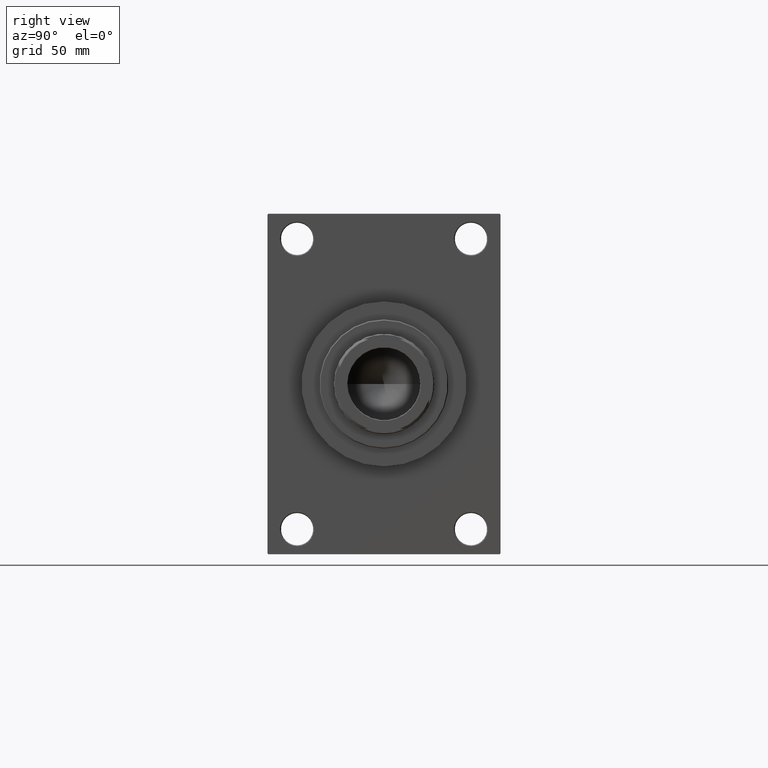
[diagram: clean part render]
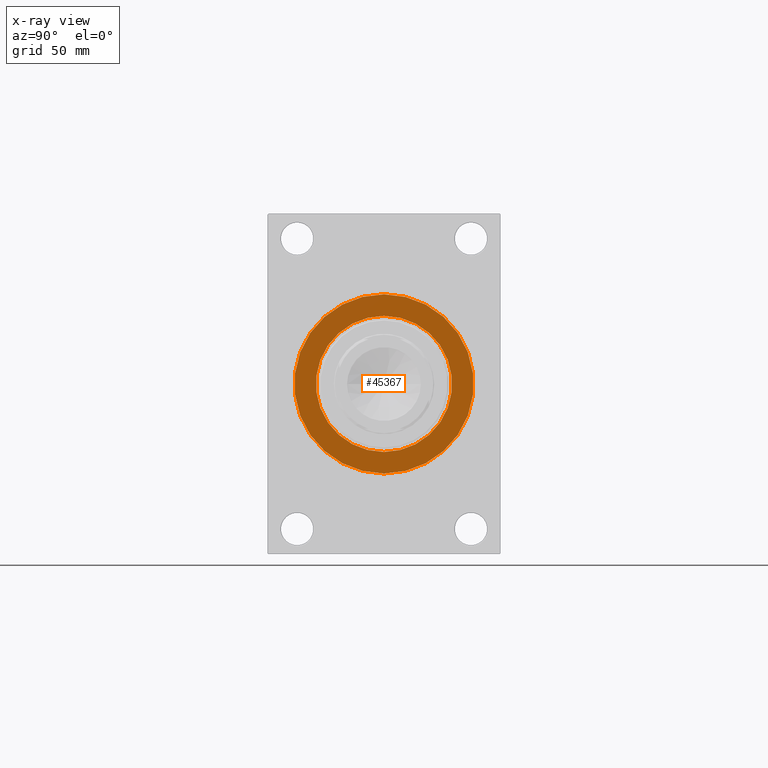
[diagram: x-ray — body ghosted, one internal face saturated and labeled with its STEP entity id]
A machine part, right view, then the same camera in x-ray: the body is ghosted and one INTERNAL B-rep face — a face not visible from any outside direction — is saturated and labeled: STEP entity #45367.
In plain terms, the highlighted planar face has unit normal (-1, 0, 0).
Its self-contained STEP definition (entity closure, byte-faithful):
#62 = CARTESIAN_POINT ( 'NONE',  ( 210.0000000000000284, 3.521148781771555838E-15, -50.00000000000000000 ) ) ;
#746 = CARTESIAN_POINT ( 'NONE',  ( 210.0000000000000000, 0.000000000000000000, -38.00000000000000000 ) ) ;
#1550 = EDGE_CURVE ( 'NONE', #47367, #18456, #5493, .T. ) ;
#1714 = ORIENTED_EDGE ( 'NONE', *, *, #9552, .F. ) ;
#2215 = CARTESIAN_POINT ( 'NONE',  ( 210.0000000000000284, 0.000000000000000000, 0.000000000000000000 ) ) ;
#2810 = CARTESIAN_POINT ( 'NONE',  ( 210.0000000000000284, -2.602085213965210642E-15, 0.000000000000000000 ) ) ;
#5493 = CIRCLE ( 'NONE', #20903, 50.00000000000000000 ) ;
#5838 = FACE_BOUND ( 'NONE', #22433, .T. ) ;
#6898 = DIRECTION ( 'NONE',  ( 0.000000000000000000, 0.000000000000000000, -1.000000000000000000 ) ) ;
#7408 = DIRECTION ( 'NONE',  ( -1.000000000000000000, 0.000000000000000000, -0.000000000000000000 ) ) ;
#7751 = CIRCLE ( 'NONE', #30893, 38.00000000000000000 ) ;
#9333 = EDGE_LOOP ( 'NONE', ( #1714, #14556 ) ) ;
#9552 = EDGE_CURVE ( 'NONE', #18456, #47367, #16430, .T. ) ;
#9738 = ORIENTED_EDGE ( 'NONE', *, *, #12499, .F. ) ;
#9943 = CARTESIAN_POINT ( 'NONE',  ( 210.0000000000000000, 0.000000000000000000, 0.000000000000000000 ) ) ;
#10791 = DIRECTION ( 'NONE',  ( 0.000000000000000000, 0.000000000000000000, 1.000000000000000000 ) ) ;
#11695 = DIRECTION ( 'NONE',  ( 1.000000000000000000, 0.000000000000000000, 0.000000000000000000 ) ) ;
#12499 = EDGE_CURVE ( 'NONE', #30150, #36991, #21137, .T. ) ;
#14556 = ORIENTED_EDGE ( 'NONE', *, *, #1550, .F. ) ;
#16256 = ORIENTED_EDGE ( 'NONE', *, *, #34972, .F. ) ;
#16430 = CIRCLE ( 'NONE', #46525, 50.00000000000000000 ) ;
#16949 = DIRECTION ( 'NONE',  ( -1.000000000000000000, 0.000000000000000000, -0.000000000000000000 ) ) ;
#18456 = VERTEX_POINT ( 'NONE', #25777 ) ;
#20574 = FACE_OUTER_BOUND ( 'NONE', #9333, .T. ) ;
#20580 = DIRECTION ( 'NONE',  ( 0.000000000000000000, 0.000000000000000000, 1.000000000000000000 ) ) ;
#20903 = AXIS2_PLACEMENT_3D ( 'NONE', #2810, #25505, #6898 ) ;
#21039 = PLANE ( 'NONE',  #22001 ) ;
#21137 = CIRCLE ( 'NONE', #31955, 38.00000000000000000 ) ;
#21290 = DIRECTION ( 'NONE',  ( -1.000000000000000000, 0.000000000000000000, -0.000000000000000000 ) ) ;
#22001 = AXIS2_PLACEMENT_3D ( 'NONE', #2215, #16949, #28054 ) ;
#22433 = EDGE_LOOP ( 'NONE', ( #9738, #16256 ) ) ;
#24276 = CARTESIAN_POINT ( 'NONE',  ( 210.0000000000000000, 4.653657836759941941E-15, 38.00000000000000000 ) ) ;
#25505 = DIRECTION ( 'NONE',  ( 1.000000000000000000, 0.000000000000000000, 0.000000000000000000 ) ) ;
#25777 = CARTESIAN_POINT ( 'NONE',  ( 210.0000000000000284, -2.602085213965210642E-15, 50.00000000000000000 ) ) ;
#26428 = DIRECTION ( 'NONE',  ( 0.000000000000000000, 0.000000000000000000, -1.000000000000000000 ) ) ;
#28054 = DIRECTION ( 'NONE',  ( -0.000000000000000000, 0.000000000000000000, 1.000000000000000000 ) ) ;
#30150 = VERTEX_POINT ( 'NONE', #746 ) ;
#30893 = AXIS2_PLACEMENT_3D ( 'NONE', #40949, #7408, #10791 ) ;
#31955 = AXIS2_PLACEMENT_3D ( 'NONE', #9943, #21290, #20580 ) ;
#34972 = EDGE_CURVE ( 'NONE', #36991, #30150, #7751, .T. ) ;
#36991 = VERTEX_POINT ( 'NONE', #24276 ) ;
#40949 = CARTESIAN_POINT ( 'NONE',  ( 210.0000000000000000, 0.000000000000000000, 0.000000000000000000 ) ) ;
#44753 = CARTESIAN_POINT ( 'NONE',  ( 210.0000000000000284, -2.602085213965210642E-15, 0.000000000000000000 ) ) ;
#45367 = ADVANCED_FACE ( 'NONE', ( #5838, #20574 ), #21039, .T. ) ;
#46525 = AXIS2_PLACEMENT_3D ( 'NONE', #44753, #11695, #26428 ) ;
#47367 = VERTEX_POINT ( 'NONE', #62 ) ;